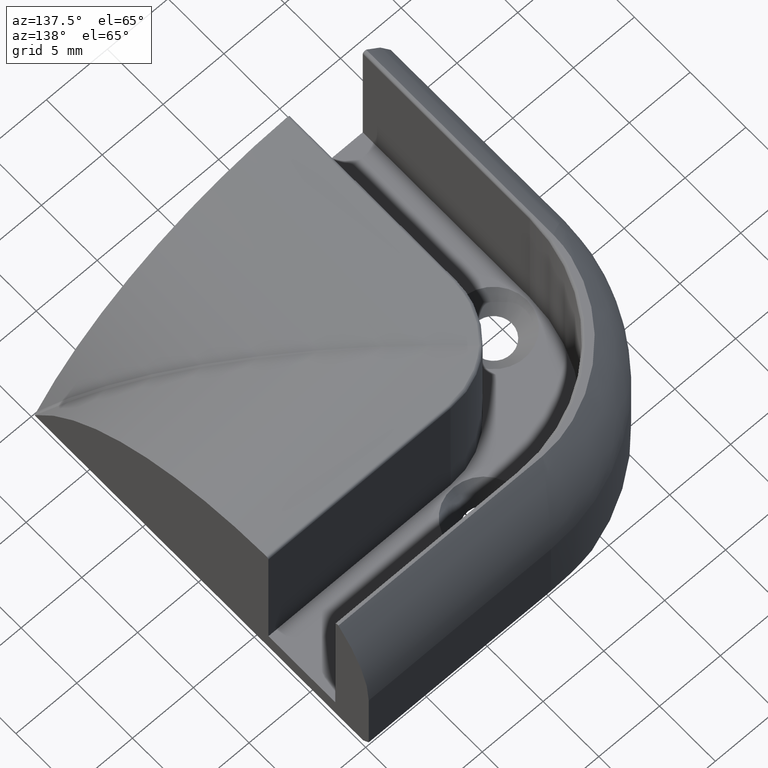
[diagram: clean part render]
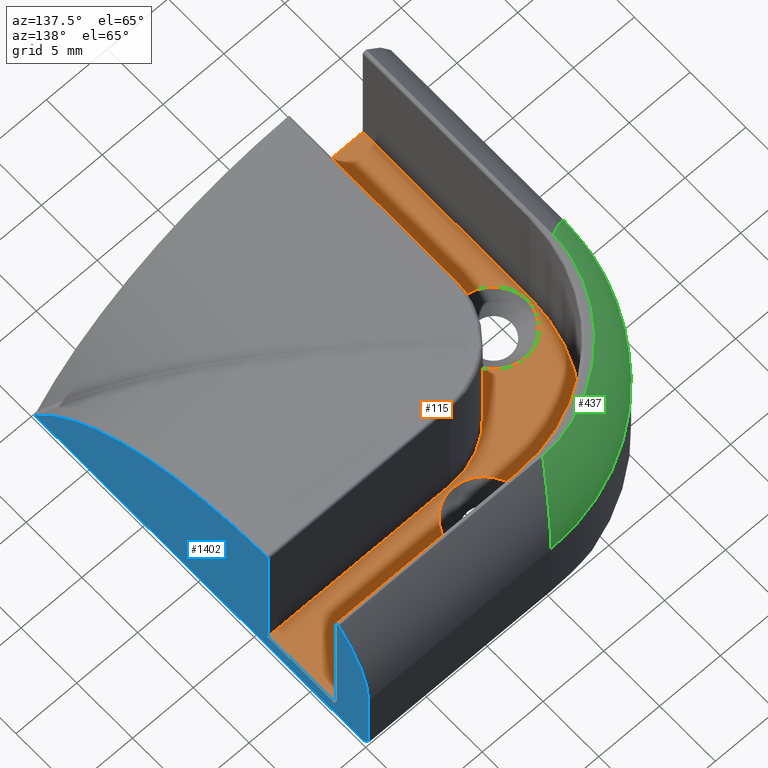
[diagram: same view with three faces highlighted in distinct colors, each labeled with its STEP entity id]
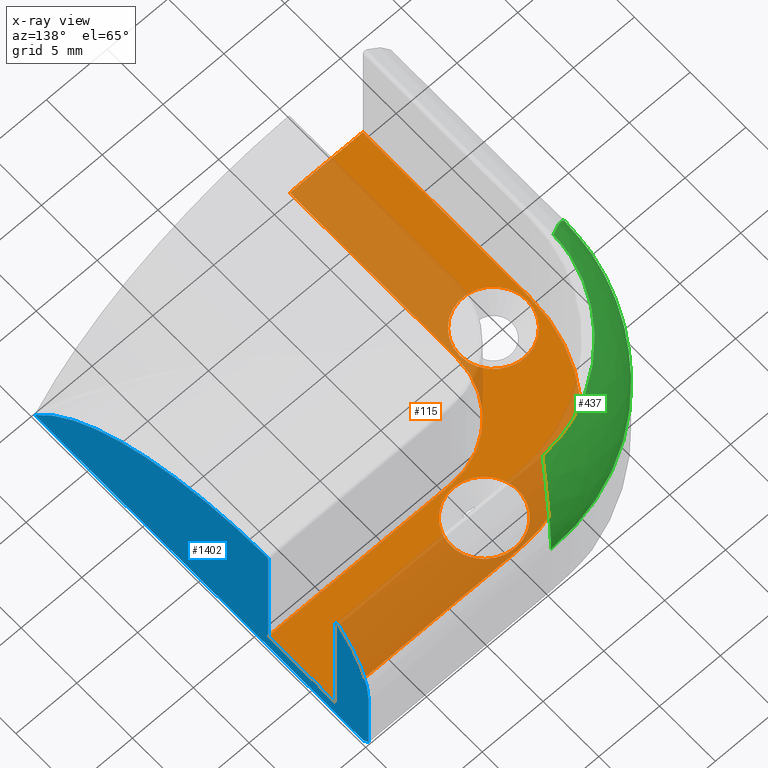
[diagram: x-ray of the same camera — body ghosted, the three highlighted faces saturated]
A machine part, auxiliary view with three faces highlighted in distinct colors.
The next image is the same camera in x-ray (body ghosted, the three faces saturated) — at least one of them is partly hidden behind the body in this view.
Their STEP definitions:

[orange] entity #115 — the highlighted planar face has unit normal (0, 0, 1).
#2=CARTESIAN_POINT('',(-26.980088826545170,0.302077244002991,1.196921255967027));
#3=DIRECTION('',(0.0,0.0,1.0));
#4=DIRECTION('',(1.0,0.0,0.0));
#5=AXIS2_PLACEMENT_3D('',#2,#3,#4);
#6=PLANE('',#5);
#7=CARTESIAN_POINT('',(-26.979088826508359,0.303077244039855,1.196921255967027));
#8=VERTEX_POINT('',#7);
#9=CARTESIAN_POINT('',(-20.979088826508359,0.303077244039855,1.196921255967027));
#10=VERTEX_POINT('',#9);
#11=CARTESIAN_POINT('',(-26.979088826508359,0.303077244039855,1.196921255967027));
#12=DIRECTION('',(1.0,0.0,0.0));
#13=VECTOR('',#12,6.0);
#14=LINE('',#11,#13);
#15=EDGE_CURVE('',#8,#10,#14,.T.);
#16=ORIENTED_EDGE('',*,*,#15,.T.);
#17=CARTESIAN_POINT('',(-20.979088826508359,15.282166070544577,1.196921255959977));
#18=VERTEX_POINT('',#17);
#19=CARTESIAN_POINT('',(-20.979088826508359,0.303077244039855,1.196921255967027));
#20=DIRECTION('',(0.0,1.0,0.0));
#21=VECTOR('',#20,14.979088826504722);
#22=LINE('',#19,#21);
#23=EDGE_CURVE('',#10,#18,#22,.T.);
#24=ORIENTED_EDGE('',*,*,#23,.T.);
#25=CARTESIAN_POINT('',(-14.979088826508359,21.282166070544577,1.196921255959977));
#26=VERTEX_POINT('',#25);
#27=CARTESIAN_POINT('',(-14.979088826508359,15.282166070544577,1.196921255967026));
#28=DIRECTION('',(0.0,6.123234E-017,1.0));
#29=DIRECTION('',(0.0,1.0,-6.123234E-017));
#30=AXIS2_PLACEMENT_3D('',#27,#28,#29);
#31=CIRCLE('',#30,6.0);
#32=EDGE_CURVE('',#26,#18,#31,.T.);
#33=ORIENTED_EDGE('',*,*,#32,.F.);
#34=CARTESIAN_POINT('',(0.0,21.282166070544577,1.196921255959977));
#35=VERTEX_POINT('',#34);
#36=CARTESIAN_POINT('',(0.0,21.282166070544577,1.196921255959977));
#37=DIRECTION('',(-1.0,0.0,0.0));
#38=VECTOR('',#37,14.979088826508359);
#39=LINE('',#36,#38);
#40=EDGE_CURVE('',#35,#26,#39,.T.);
#41=ORIENTED_EDGE('',*,*,#40,.F.);
#42=CARTESIAN_POINT('',(0.0,27.282166070544577,1.196921255959977));
#43=VERTEX_POINT('',#42);
#44=CARTESIAN_POINT('',(0.0,21.282166070544577,1.196921255959977));
#45=DIRECTION('',(0.0,1.0,0.0));
#46=VECTOR('',#45,6.0);
#47=LINE('',#44,#46);
#48=EDGE_CURVE('',#35,#43,#47,.T.);
#49=ORIENTED_EDGE('',*,*,#48,.T.);
#50=CARTESIAN_POINT('',(-14.979082826508261,27.282160070544137,1.196921255963842));
#51=VERTEX_POINT('',#50);
#52=CARTESIAN_POINT('',(0.0,27.282166070544577,1.196921255959977));
#53=DIRECTION('',(-0.999999999999975,-0.000000222394480,2.612667E-013));
#54=VECTOR('',#53,14.979082826509224);
#55=LINE('',#52,#54);
#56=EDGE_CURVE('',#43,#51,#55,.T.);
#57=ORIENTED_EDGE('',*,*,#56,.T.);
#58=CARTESIAN_POINT('',(-26.979082826508261,15.282160070544137,1.196921255963843));
#59=VERTEX_POINT('',#58);
#60=CARTESIAN_POINT('',(-14.979082826508261,15.282160070544137,1.196921255967026));
#61=DIRECTION('',(0.0,6.123234E-017,1.0));
#62=DIRECTION('',(0.0,1.0,-6.123234E-017));
#63=AXIS2_PLACEMENT_3D('',#60,#61,#62);
#64=CIRCLE('',#63,12.0);
#65=EDGE_CURVE('',#51,#59,#64,.T.);
#66=ORIENTED_EDGE('',*,*,#65,.T.);
#67=CARTESIAN_POINT('',(-26.979088826508359,0.303077244039855,1.196921255967027));
#68=DIRECTION('',(0.0,1.0,0.0));
#69=VECTOR('',#68,14.979082826504282);
#70=LINE('',#67,#69);
#71=EDGE_CURVE('',#8,#59,#70,.T.);
#72=ORIENTED_EDGE('',*,*,#71,.F.);
#73=EDGE_LOOP('',(#16,#24,#33,#41,#49,#57,#66,#72));
#74=FACE_OUTER_BOUND('',#73,.T.);
#75=CARTESIAN_POINT('',(-26.737731014624956,15.303077244039741,1.196921255973051));
#76=VERTEX_POINT('',#75);
#77=CARTESIAN_POINT('',(-21.220434638392021,15.303077244039741,1.196921255973051));
#78=VERTEX_POINT('',#77);
#79=CARTESIAN_POINT('',(-23.979082826508488,15.303077244039741,1.196921255973051));
#80=DIRECTION('',(0.0,6.123234E-017,1.0));
#81=DIRECTION('',(1.0,0.0,0.0));
#82=AXIS2_PLACEMENT_3D('',#79,#80,#81);
#83=CIRCLE('',#82,2.758648188116467);
#84=EDGE_CURVE('',#76,#78,#83,.T.);
#85=ORIENTED_EDGE('',*,*,#84,.F.);
#86=CARTESIAN_POINT('',(-23.979082826508488,15.303077244039741,1.196921255973051));
#87=DIRECTION('',(0.0,6.123234E-017,1.0));
#88=DIRECTION('',(1.0,0.0,0.0));
#89=AXIS2_PLACEMENT_3D('',#86,#87,#88);
#90=CIRCLE('',#89,2.758648188116467);
#91=EDGE_CURVE('',#78,#76,#90,.T.);
#92=ORIENTED_EDGE('',*,*,#91,.F.);
#93=EDGE_LOOP('',(#85,#92));
#94=FACE_BOUND('',#93,.T.);
#95=CARTESIAN_POINT('',(-14.989539913220938,27.040811258661051,1.196921255959977));
#96=VERTEX_POINT('',#95);
#97=CARTESIAN_POINT('',(-14.989539913220938,21.523520882428102,1.196921255959977));
#98=VERTEX_POINT('',#97);
#99=CARTESIAN_POINT('',(-14.989539913220938,24.282166070544577,1.196921255959977));
#100=DIRECTION('',(0.0,-6.123234E-017,-1.0));
#101=DIRECTION('',(0.0,1.0,-6.123234E-017));
#102=AXIS2_PLACEMENT_3D('',#99,#100,#101);
#103=CIRCLE('',#102,2.758645188116475);
#104=EDGE_CURVE('',#96,#98,#103,.T.);
#105=ORIENTED_EDGE('',*,*,#104,.T.);
#106=CARTESIAN_POINT('',(-14.989539913220938,24.282166070544577,1.196921255959977));
#107=DIRECTION('',(0.0,-6.123234E-017,-1.0));
#108=DIRECTION('',(0.0,1.0,-6.123234E-017));
#109=AXIS2_PLACEMENT_3D('',#106,#107,#108);
#110=CIRCLE('',#109,2.758645188116475);
#111=EDGE_CURVE('',#98,#96,#110,.T.);
#112=ORIENTED_EDGE('',*,*,#111,.T.);
#113=EDGE_LOOP('',(#105,#112));
#114=FACE_BOUND('',#113,.T.);
#115=ADVANCED_FACE('',(#74,#94,#114),#6,.T.);

[blue] entity #1402 — the highlighted planar face has unit normal (-1, 0, 0).
#34=CARTESIAN_POINT('',(0.0,21.282166070544577,1.196921255959977));
#35=VERTEX_POINT('',#34);
#42=CARTESIAN_POINT('',(0.0,27.282166070544577,1.196921255959977));
#43=VERTEX_POINT('',#42);
#44=CARTESIAN_POINT('',(0.0,21.282166070544577,1.196921255959977));
#45=DIRECTION('',(0.0,1.0,0.0));
#46=VECTOR('',#45,6.0);
#47=LINE('',#44,#46);
#48=EDGE_CURVE('',#35,#43,#47,.T.);
#212=CARTESIAN_POINT('',(0.0,30.282157070544258,0.196922255960088));
#213=VERTEX_POINT('',#212);
#220=CARTESIAN_POINT('',(0.0,29.782157570544314,-0.303077244039971));
#221=VERTEX_POINT('',#220);
#222=CARTESIAN_POINT('',(-3.061614E-017,30.282157070544258,0.196922255960088));
#223=DIRECTION('',(4.329780E-017,-0.707106781186467,-0.707106781186628));
#224=VECTOR('',#223,0.707106074079768);
#225=LINE('',#222,#224);
#226=EDGE_CURVE('',#213,#221,#225,.T.);
#467=CARTESIAN_POINT('',(0.0,30.282157070544372,6.196916255933045));
#468=VERTEX_POINT('',#467);
#469=CARTESIAN_POINT('',(-6.961311E-030,30.282157070544372,6.196916255933045));
#470=DIRECTION('',(0.0,0.0,-1.0));
#471=VECTOR('',#470,5.999993999972958);
#472=LINE('',#469,#471);
#473=EDGE_CURVE('',#468,#213,#472,.T.);
#516=CARTESIAN_POINT('',(0.0,27.564038552271995,12.641907809360530));
#517=VERTEX_POINT('',#516);
#518=CARTESIAN_POINT('',(0.0,21.282166070478524,6.196916255933046));
#519=DIRECTION('',(-1.0,-6.123234E-017,3.749399E-033));
#520=DIRECTION('',(-6.123234E-017,1.0,-6.123234E-017));
#521=AXIS2_PLACEMENT_3D('',#518,#519,#520);
#522=CIRCLE('',#521,8.999991000065847);
#523=EDGE_CURVE('',#517,#468,#522,.T.);
#541=CARTESIAN_POINT('',(0.0,0.303077244039741,-0.303077244039969));
#542=VERTEX_POINT('',#541);
#552=CARTESIAN_POINT('',(-1.805073E-015,29.782157570544314,-0.303077244039971));
#553=DIRECTION('',(0.0,-1.0,0.0));
#554=VECTOR('',#553,29.479080326508438);
#555=LINE('',#552,#554);
#556=EDGE_CURVE('',#221,#542,#555,.T.);
#907=CARTESIAN_POINT('',(0.0,27.282160070544137,12.441907806380298));
#908=VERTEX_POINT('',#907);
#915=CARTESIAN_POINT('',(0.0,27.482160073524369,12.641907809360530));
#916=VERTEX_POINT('',#915);
#917=CARTESIAN_POINT('',(0.0,27.482160073524369,12.441907806380298));
#918=DIRECTION('',(-1.0,0.0,0.0));
#919=DIRECTION('',(0.0,-1.0,6.123234E-017));
#920=AXIS2_PLACEMENT_3D('',#917,#918,#919);
#921=CIRCLE('',#920,0.200000002980232);
#922=EDGE_CURVE('',#908,#916,#921,.T.);
#962=CARTESIAN_POINT('',(-5.309519E-016,27.482160073524369,12.641907809360530));
#963=DIRECTION('',(0.0,1.0,0.0));
#964=VECTOR('',#963,0.081878478747672);
#965=LINE('',#962,#964);
#966=EDGE_CURVE('',#916,#517,#965,.T.);
#1024=CARTESIAN_POINT('',(0.0,27.282166070544577,1.196921255959977));
#1025=DIRECTION('',(0.0,-0.000000524247050,0.999999999999863));
#1026=VECTOR('',#1025,11.244986550421922);
#1027=LINE('',#1024,#1026);
#1028=EDGE_CURVE('',#43,#908,#1027,.T.);
#1128=CARTESIAN_POINT('',(0.0,21.074981943714146,12.362057179839779));
#1129=VERTEX_POINT('',#1128);
#1136=CARTESIAN_POINT('',(0.0,21.282166070544577,12.162186247594489));
#1137=VERTEX_POINT('',#1136);
#1138=CARTESIAN_POINT('',(0.0,21.082166067564348,12.162186247594489));
#1139=DIRECTION('',(-1.0,0.0,0.0));
#1140=DIRECTION('',(0.0,-0.035920618715748,0.999354646334862));
#1141=AXIS2_PLACEMENT_3D('',#1138,#1139,#1140);
#1142=CIRCLE('',#1141,0.200000002980240);
#1143=EDGE_CURVE('',#1129,#1137,#1142,.T.);
#1218=CARTESIAN_POINT('',(0.0,21.282166070544577,12.162186247594491));
#1219=DIRECTION('',(0.0,0.0,-1.0));
#1220=VECTOR('',#1219,10.965264991634513);
#1221=LINE('',#1218,#1220);
#1222=EDGE_CURVE('',#1137,#35,#1221,.T.);
#1369=CARTESIAN_POINT('',(0.0,33.280185055434799,-1.597695751686958));
#1370=DIRECTION('',(-1.0,0.0,0.0));
#1371=DIRECTION('',(0.0,-1.0,0.0));
#1372=AXIS2_PLACEMENT_3D('',#1369,#1370,#1371);
#1373=PLANE('',#1372);
#1374=ORIENTED_EDGE('',*,*,#966,.F.);
#1375=ORIENTED_EDGE('',*,*,#922,.F.);
#1376=ORIENTED_EDGE('',*,*,#1028,.F.);
#1377=ORIENTED_EDGE('',*,*,#48,.F.);
#1378=ORIENTED_EDGE('',*,*,#1222,.F.);
#1379=ORIENTED_EDGE('',*,*,#1143,.F.);
#1380=CARTESIAN_POINT('',(-1.136868E-013,0.476072615469362,-2.273737E-013));
#1381=VERTEX_POINT('',#1380);
#1382=CARTESIAN_POINT('',(1.972152E-031,21.967473363648431,-12.468123346382077));
#1383=DIRECTION('',(-1.000000000000000,-6.123234E-017,6.162976E-033));
#1384=DIRECTION('',(5.339090E-017,-0.871939489094975,0.489613651113604));
#1385=AXIS2_PLACEMENT_3D('',#1382,#1383,#1384);
#1386=CIRCLE('',#1385,24.846215122215764);
#1387=EDGE_CURVE('',#1381,#1129,#1386,.T.);
#1388=ORIENTED_EDGE('',*,*,#1387,.F.);
#1389=CARTESIAN_POINT('',(1.972152E-031,21.967473363648431,-12.468123346382077));
#1390=DIRECTION('',(-1.000000000000000,-6.123234E-017,6.162976E-033));
#1391=DIRECTION('',(5.339090E-017,-0.871939489094975,0.489613651113604));
#1392=AXIS2_PLACEMENT_3D('',#1389,#1390,#1391);
#1393=CIRCLE('',#1392,24.846215122215764);
#1394=EDGE_CURVE('',#542,#1381,#1393,.T.);
#1395=ORIENTED_EDGE('',*,*,#1394,.F.);
#1396=ORIENTED_EDGE('',*,*,#556,.F.);
#1397=ORIENTED_EDGE('',*,*,#226,.F.);
#1398=ORIENTED_EDGE('',*,*,#473,.F.);
#1399=ORIENTED_EDGE('',*,*,#523,.F.);
#1400=EDGE_LOOP('',(#1374,#1375,#1376,#1377,#1378,#1379,#1388,#1395,#1396,#1397,#1398,#1399));
#1401=FACE_OUTER_BOUND('',#1400,.T.);
#1402=ADVANCED_FACE('',(#1401),#1373,.F.);

[green] entity #437 — the highlighted face is a freeform B-spline surface patch.
#162=CARTESIAN_POINT('',(-14.979079826508610,30.282157070544372,6.196916255933045));
#163=VERTEX_POINT('',#162);
#189=CARTESIAN_POINT('',(-29.979079826508496,15.282157070544372,6.196916255939981));
#190=VERTEX_POINT('',#189);
#197=CARTESIAN_POINT('',(-14.979079826508496,15.282157070544374,6.196916255936571));
#198=DIRECTION('',(-2.273737E-013,-2.350140E-013,-1.0));
#199=DIRECTION('',(-7.579123E-015,1.0,-2.350140E-013));
#200=AXIS2_PLACEMENT_3D('',#197,#198,#199);
#201=CIRCLE('',#200,14.999999999999998);
#202=EDGE_CURVE('',#190,#163,#201,.T.);
#238=CARTESIAN_POINT('',(-16.899792408590997,27.401095400040376,12.795801232497752));
#239=CARTESIAN_POINT('',(-17.418320290685152,27.131514681305454,13.045730059041025));
#240=CARTESIAN_POINT('',(-18.456003187765972,26.536040857796870,13.487311235159359));
#241=CARTESIAN_POINT('',(-19.984690186315561,25.490697513403731,13.961945799625202));
#242=CARTESIAN_POINT('',(-21.462053115873285,24.309479610339068,14.241757440285845));
#243=CARTESIAN_POINT('',(-22.863887425116008,23.011640282134142,14.322057732475859));
#244=CARTESIAN_POINT('',(-24.167608053299812,21.618132325624885,14.201598159931825));
#245=CARTESIAN_POINT('',(-25.352162404367977,20.151401676130803,13.882264741312662));
#246=CARTESIAN_POINT('',(-26.398235635810671,18.635479024648163,13.369384509187196));
#247=CARTESIAN_POINT('',(-26.992447652303589,17.607589246992287,12.903540666305616));
#248=CARTESIAN_POINT('',(-27.260961308236119,17.094240612887788,12.641907809367467));
#249=CARTESIAN_POINT('',(-16.883064124529305,27.426187763402361,12.772573912291847));
#250=CARTESIAN_POINT('',(-17.404445508308822,27.157037279006289,13.024010358938003));
#251=CARTESIAN_POINT('',(-18.447852544244029,26.561712835372404,13.468317459396282));
#252=CARTESIAN_POINT('',(-19.984749686780077,25.514600626514238,13.945979229428536));
#253=CARTESIAN_POINT('',(-21.469617061961483,24.329791274060440,14.227650127746251));
#254=CARTESIAN_POINT('',(-22.877915793980627,23.026763403775185,14.308570065768489));
#255=CARTESIAN_POINT('',(-24.186760365067805,21.626736434336468,14.187470429417456));
#256=CARTESIAN_POINT('',(-25.374832125349990,20.152457042811395,13.866264247681347));
#257=CARTESIAN_POINT('',(-26.422592387233053,18.628289150798103,13.350356646466727));
#258=CARTESIAN_POINT('',(-27.016595680718634,17.594658779647361,12.881800388775698));
#259=CARTESIAN_POINT('',(-27.284649422604431,17.078448497162356,12.618670476367349));
#260=CARTESIAN_POINT('',(-16.849424389092430,27.476647240409694,12.725864942994537));
#261=CARTESIAN_POINT('',(-17.376544020824348,27.208361935567087,12.980333137619938));
#262=CARTESIAN_POINT('',(-18.431462011257665,26.613337887326178,13.430121934424267));
#263=CARTESIAN_POINT('',(-19.984869339212878,25.562668581254215,13.913871262151712));
#264=CARTESIAN_POINT('',(-21.484827776002881,24.370637005239423,14.199281033832783));
#265=CARTESIAN_POINT('',(-22.906126136145801,23.057175238552034,14.281447048367333));
#266=CARTESIAN_POINT('',(-24.225274697948791,21.644038862945425,14.159060275986649));
#267=CARTESIAN_POINT('',(-25.420419790734574,20.154579331971064,13.834088062088624));
#268=CARTESIAN_POINT('',(-26.471572585735721,18.613830677158575,13.312092574342820));
#269=CARTESIAN_POINT('',(-27.065156147781988,17.568656262057722,12.838081787290115));
#270=CARTESIAN_POINT('',(-27.332285025718864,17.046691349027327,12.571941371845945));
#271=CARTESIAN_POINT('',(-16.783019361791727,27.576254532343967,12.630750261000417));
#272=CARTESIAN_POINT('',(-17.321661843366559,27.310021490622663,12.891104969135810));
#273=CARTESIAN_POINT('',(-18.399697547026456,26.716179644599674,13.351557493079010));
#274=CARTESIAN_POINT('',(-19.986227142279482,25.659063436869165,13.847181212296483));
#275=CARTESIAN_POINT('',(-21.516384942015225,24.453052262751847,14.139906455929236));
#276=CARTESIAN_POINT('',(-22.963575389914713,23.118997443106348,14.224533783082968));
#277=CARTESIAN_POINT('',(-24.303067914567151,21.679750474222434,14.099670424698811));
#278=CARTESIAN_POINT('',(-25.511915057571592,20.159904527572142,13.767393491016414));
#279=CARTESIAN_POINT('',(-26.569214549157849,18.585874244108094,13.233584776823649));
#280=CARTESIAN_POINT('',(-27.161402749136958,17.517496413812353,12.749001880253370));
#281=CARTESIAN_POINT('',(-27.426373372491042,16.983965627699831,12.477035407454398));
#282=CARTESIAN_POINT('',(-16.522813557369332,27.966562263212719,12.242653717830915));
#283=CARTESIAN_POINT('',(-17.107697349080876,27.710055761384162,12.525582728066556));
#284=CARTESIAN_POINT('',(-18.278508566201015,27.123717543463211,13.027018385167493));
#285=CARTESIAN_POINT('',(-19.997816494920283,26.044077057254206,13.568415013971251));
#286=CARTESIAN_POINT('',(-21.648691408737800,24.784513086853423,13.889411928312443));
#287=CARTESIAN_POINT('',(-23.198827065857451,23.369594114003625,13.983599728636678));
#288=CARTESIAN_POINT('',(-24.618384999120117,21.826650456612189,13.849234913473724));
#289=CARTESIAN_POINT('',(-25.879938959647617,20.185376460505310,13.488833069406954));
#290=CARTESIAN_POINT('',(-26.958875387993096,18.477886636680424,12.909572569173408));
#291=CARTESIAN_POINT('',(-27.542950352210557,17.316284687429327,12.384385528256335));
#292=CARTESIAN_POINT('',(-27.797887453620035,16.736288954428378,12.090090971007092));
#293=CARTESIAN_POINT('',(-16.174061876836664,28.489688476203298,11.621935985065800));
#294=CARTESIAN_POINT('',(-16.828020827605524,28.258639071474295,11.929546509978287));
#295=CARTESIAN_POINT('',(-18.137528279799408,27.703724062679033,12.476556137588604));
#296=CARTESIAN_POINT('',(-20.053889101759200,26.615021180942357,13.069895591605501));
#297=CARTESIAN_POINT('',(-21.881039103339525,25.294144833991830,13.423568016997224));
#298=CARTESIAN_POINT('',(-23.576911634299222,23.771437950407762,13.529235063877596));
#299=CARTESIAN_POINT('',(-25.103098062555127,22.081550676054189,13.384585342145183));
#300=CARTESIAN_POINT('',(-26.424862824699872,20.262750928598138,12.992820965214488));
#301=CARTESIAN_POINT('',(-27.511839150450633,18.356905976685610,12.363162403871369));
#302=CARTESIAN_POINT('',(-28.063876748963494,17.055703206213703,11.793654447754962));
#303=CARTESIAN_POINT('',(-28.293076168228612,16.406162319380883,11.475375035447733));
#304=CARTESIAN_POINT('',(-15.803239566240066,29.045920551525374,10.778659153178028));
#305=CARTESIAN_POINT('',(-16.541916624063177,28.860540124184574,11.094346480284525));
#306=CARTESIAN_POINT('',(-18.021682358822574,28.371522345151192,11.657971811610192));
#307=CARTESIAN_POINT('',(-20.177825266654221,27.305988561327087,12.272578622072864));
#308=CARTESIAN_POINT('',(-22.215225681786571,25.936608580492340,12.640957687823338));
#309=CARTESIAN_POINT('',(-24.078134552392456,24.300619362401658,12.752787430266439));
#310=CARTESIAN_POINT('',(-25.716453428938358,22.442226800314870,12.605153406009412));
#311=CARTESIAN_POINT('',(-27.085907816415141,20.411403612296589,12.201938491587930));
#312=CARTESIAN_POINT('',(-28.149255824981616,18.263712852592892,11.554418571518809));
#313=CARTESIAN_POINT('',(-28.635339600281696,16.790690653067884,10.970704670149063));
#314=CARTESIAN_POINT('',(-28.818908223068163,16.055606739774415,10.645596182987374));
#315=CARTESIAN_POINT('',(-15.519149512100913,29.472054567403596,9.967167401396170));
#316=CARTESIAN_POINT('',(-16.330914686852864,29.334876600806552,10.268796022882764));
#317=CARTESIAN_POINT('',(-17.957669281041113,28.919666336003619,10.809136496730533));
#318=CARTESIAN_POINT('',(-20.319406932262119,27.895833502287260,11.400917162785666));
#319=CARTESIAN_POINT('',(-22.534239936024150,26.501791068169108,11.757138532888092));
#320=CARTESIAN_POINT('',(-24.533526812261321,24.780382946891116,11.866481940034157));
#321=CARTESIAN_POINT('',(-26.256400328443952,22.784290899771882,11.725711331813145));
#322=CARTESIAN_POINT('',(-27.650128822795462,20.574281246712893,11.339027165588472));
#323=CARTESIAN_POINT('',(-28.671875954944497,18.218839797400122,10.718694110872351));
#324=CARTESIAN_POINT('',(-29.084548319591210,16.597148281664420,10.161156162322294));
#325=CARTESIAN_POINT('',(-29.220194947322362,15.788081588132231,9.851542294423785));
#326=CARTESIAN_POINT('',(-15.285818711122484,29.822049893888384,9.090951428559629));
#327=CARTESIAN_POINT('',(-16.164860267484471,29.735804160879713,9.352763196202631));
#328=CARTESIAN_POINT('',(-17.927000311628337,29.401421373975889,9.823190966981152));
#329=CARTESIAN_POINT('',(-20.476947111609629,28.432877380365756,10.340368987369285));
#330=CARTESIAN_POINT('',(-22.851884477226182,27.029754847082167,10.652792273281603));
#331=CARTESIAN_POINT('',(-24.970454662647676,25.239609044305666,10.749475034102504));
#332=CARTESIAN_POINT('',(-26.761397985886354,23.122990232189906,10.627247132352350));
#333=CARTESIAN_POINT('',(-28.164133417587841,20.751089950616997,10.290146418341042));
#334=CARTESIAN_POINT('',(-29.131117562712650,18.205156266594777,9.750006317520668));
#335=CARTESIAN_POINT('',(-29.463707048591754,16.446264692724935,9.265916924393547));
#336=CARTESIAN_POINT('',(-29.548887341785907,15.568952777340106,8.997820630992612));
#337=CARTESIAN_POINT('',(-15.079189726430389,30.131992596072084,7.988419171478431));
#338=CARTESIAN_POINT('',(-16.023979023783522,30.100282818654517,8.170946026847981));
#339=CARTESIAN_POINT('',(-17.918490032830345,29.854434911193067,8.499925234979459));
#340=CARTESIAN_POINT('',(-20.651520661641150,28.952754335349184,8.862993117619066));
#341=CARTESIAN_POINT('',(-23.180340809759841,27.551286118119975,9.083085875629960));
#342=CARTESIAN_POINT('',(-25.410525987448764,25.701705847811901,9.151702546892423));
#343=CARTESIAN_POINT('',(-27.260342666761755,23.472212791925287,9.066369578474973));
#344=CARTESIAN_POINT('',(-28.661581524113494,20.944514591639383,8.830185631477017));
#345=CARTESIAN_POINT('',(-29.562576021579645,18.212988610721542,8.452259586190701));
#346=CARTESIAN_POINT('',(-29.807676439553923,16.319712944440955,8.114556158187618));
#347=CARTESIAN_POINT('',(-29.838949895840951,15.375577257869793,7.928056332847451));
#348=CARTESIAN_POINT('',(-14.999385517196686,30.251698610658714,7.106062436994177));
#349=CARTESIAN_POINT('',(-15.972470830703138,30.245405587925021,7.201185459306519));
#350=CARTESIAN_POINT('',(-17.923977118243158,30.041624929639980,7.372771118420717));
#351=CARTESIAN_POINT('',(-20.735431054881367,29.174152985589835,7.562326399358296));
#352=CARTESIAN_POINT('',(-23.329350654761519,27.777915290790652,7.677335370246466));
#353=CARTESIAN_POINT('',(-25.605418657988331,25.906109797087588,7.713249671436127));
#354=CARTESIAN_POINT('',(-27.477273691725131,23.630179922998828,7.668743042526362));
#355=CARTESIAN_POINT('',(-28.873469686787693,21.036482171660772,7.545469956847249));
#356=CARTESIAN_POINT('',(-29.740809916232735,18.225321992554008,7.348297676529787));
#357=CARTESIAN_POINT('',(-29.944444651152168,16.274065911201447,7.172253517530644));
#358=CARTESIAN_POINT('',(-29.950652933080853,15.301108380207015,7.075105137842476));
#359=CARTESIAN_POINT('',(-14.980676817932942,30.279761589396365,6.449258634335996));
#360=CARTESIAN_POINT('',(-15.960288548488954,30.279261449469942,6.475805455610943));
#361=CARTESIAN_POINT('',(-17.924940510734842,30.085047907138517,6.523696736455525));
#362=CARTESIAN_POINT('',(-20.754496749800730,29.225287774512417,6.576611524127809));
#363=CARTESIAN_POINT('',(-23.363469750817146,27.830111200763515,6.608720983440254));
#364=CARTESIAN_POINT('',(-25.650189942955819,25.953071669668876,6.618750971384902));
#365=CARTESIAN_POINT('',(-27.527232084639245,23.666361206137601,6.606329823794660));
#366=CARTESIAN_POINT('',(-28.922403769370348,21.057405467769136,6.571920956314931));
#367=CARTESIAN_POINT('',(-29.782151711372617,18.227870233494418,6.516887622857177));
#368=CARTESIAN_POINT('',(-29.976351840835754,16.263248445640667,6.467757080674481));
#369=CARTESIAN_POINT('',(-29.976845219171324,15.283646812493453,6.440647544512499));
#370=CARTESIAN_POINT('',(-14.979086590826206,30.282146924093148,6.281121030268095));
#371=CARTESIAN_POINT('',(-15.959254962768817,30.282147158709744,6.289966357441580));
#372=CARTESIAN_POINT('',(-17.925031970780459,30.088761529986495,6.305925829917650));
#373=CARTESIAN_POINT('',(-20.756140837822244,29.229672198069032,6.323561167108523));
#374=CARTESIAN_POINT('',(-23.366405462793043,27.834593162684019,6.334263207928724));
#375=CARTESIAN_POINT('',(-25.654038300948926,25.957108246117318,6.337606050997907));
#376=CARTESIAN_POINT('',(-27.531521880552411,23.669474090096045,6.333465502534470));
#377=CARTESIAN_POINT('',(-28.926599364255807,21.059209029740803,6.321996334661439));
#378=CARTESIAN_POINT('',(-29.785687021491288,18.228097505185506,6.303654174556390));
#379=CARTESIAN_POINT('',(-29.979070824298315,16.262331606104176,6.287281264079422));
#380=CARTESIAN_POINT('',(-29.979070642013980,15.282163193556022,6.278248266910667));
#381=CARTESIAN_POINT('',(-14.979079826508496,30.282157070544375,6.196916255933045));
#382=CARTESIAN_POINT('',(-15.959251229804101,30.282157070544375,6.196916255933268));
#383=CARTESIAN_POINT('',(-17.925031926232066,30.088770576792943,6.196916255933760));
#384=CARTESIAN_POINT('',(-20.756143457045393,29.229679746560361,6.196916255934606));
#385=CARTESIAN_POINT('',(-23.366409458855255,27.834599459692040,6.196916255935525));
#386=CARTESIAN_POINT('',(-25.654043248807930,25.957113501522976,6.196916255936489));
#387=CARTESIAN_POINT('',(-27.531527740139307,23.669478335880481,6.196916255937452));
#388=CARTESIAN_POINT('',(-28.926606300443297,21.059211939689586,6.196916255938385));
#389=CARTESIAN_POINT('',(-29.785695269552210,18.228097900482400,6.196916255939243));
#390=CARTESIAN_POINT('',(-29.979079826508496,16.262328473839979,6.196916255939749));
#391=CARTESIAN_POINT('',(-29.979079826508496,15.282157070544372,6.196916255939979));
#392=B_SPLINE_SURFACE_WITH_KNOTS('',3,3,((#238,#249,#260,#271,#282,#293,#304,#315,#326,#337,#348,#359,#370,#381),(#239,#250,#261,#272,#283,#294,#305,#316,#327,#338,#349,#360,#371,#382),(#240,#251,#262,#273,#284,#295,#306,#317,#328,#339,#350,#361,#372,#383),(#241,#252,#263,#274,#285,#296,#307,#318,#329,#340,#351,#362,#373,#384),(#242,#253,#264,#275,#286,#297,#308,#319,#330,#341,#352,#363,#374,#385),(#243,#254,#265,#276,#287,#298,#309,#320,#331,#342,#353,#364,#375,#386),(#244,#255,#266,#277,#288,#299,#310,#321,#332,#343,#354,#365,#376,#387),(#245,#256,#267,#278,#289,#300,#311,#322,#333,#344,#355,#366,#377,#388),(#246,#257,#268,#279,#290,#301,#312,#323,#334,#345,#356,#367,#378,#389),(#247,#258,#269,#280,#291,#302,#313,#324,#335,#346,#357,#368,#379,#390),(#248,#259,#270,#281,#292,#303,#314,#325,#336,#347,#358,#369,#380,#391)),.UNSPECIFIED.,.F.,.F.,.U.,(4,1,1,1,1,1,1,1,4),(4,1,1,1,1,1,1,1,1,1,1,4),(0.0,2.520175425507451,5.040359293161854,7.560551602963211,10.080752354911521,12.600961549006783,15.121179185249000,17.641405263638163,20.161639784174284),(0.0,0.090279102920766,0.181546722098515,0.366950015033110,1.576100391457885,2.492781257981137,3.512987305158326,4.644343550424859,5.883130865288035,7.893013899248282,8.238662171570599,8.585164982643555),.UNSPECIFIED.);
#393=CARTESIAN_POINT('',(-16.791163368858975,27.564038552282636,12.641907809350185));
#394=VERTEX_POINT('',#393);
#395=CARTESIAN_POINT('',(-16.791163368858975,27.564038552282636,12.641907809350185));
#396=CARTESIAN_POINT('',(-16.483832136155911,28.025034248853729,12.192579651738468));
#397=CARTESIAN_POINT('',(-15.976129365098018,28.786586501569936,11.280133640239795));
#398=CARTESIAN_POINT('',(-15.423146221483080,29.616059143320985,9.720843181197777));
#399=CARTESIAN_POINT('',(-15.069393113425463,30.146687478843418,8.059624857744096));
#400=CARTESIAN_POINT('',(-14.979079826508496,30.282157070544375,6.860112821689198));
#401=CARTESIAN_POINT('',(-14.979079826508496,30.282157070544375,6.196916255933045));
#402=B_SPLINE_CURVE_WITH_KNOTS('',3,(#395,#396,#397,#398,#399,#400,#401),.UNSPECIFIED.,.F.,.U.,(4,1,1,1,4),(0.0,2.272665204260283,4.025470756334207,5.568264665453262,7.471832047471911),.UNSPECIFIED.);
#403=EDGE_CURVE('',#394,#163,#402,.T.);
#404=ORIENTED_EDGE('',*,*,#403,.T.);
#405=ORIENTED_EDGE('',*,*,#202,.F.);
#406=CARTESIAN_POINT('',(-27.260961308236119,17.094240612887788,12.641907809367465));
#407=VERTEX_POINT('',#406);
#408=CARTESIAN_POINT('',(-27.260961308236119,17.094240612887788,12.641907809367465));
#409=CARTESIAN_POINT('',(-27.721957004808701,16.786909380185751,12.192579651755748));
#410=CARTESIAN_POINT('',(-28.483509257526862,16.279206609129211,11.280133640257985));
#411=CARTESIAN_POINT('',(-29.312981899280885,15.726223465516163,9.720843181213807));
#412=CARTESIAN_POINT('',(-29.843610234805169,15.372470357459571,8.059624857765696));
#413=CARTESIAN_POINT('',(-29.979079826508496,15.282157070544374,6.860112821696133));
#414=CARTESIAN_POINT('',(-29.979079826508496,15.282157070544374,6.196916255939981));
#415=B_SPLINE_CURVE_WITH_KNOTS('',3,(#408,#409,#410,#411,#412,#413,#414),.UNSPECIFIED.,.F.,.U.,(4,1,1,1,4),(0.0,2.272665204264138,4.025470756341036,5.568264665462708,7.471832047484587),.UNSPECIFIED.);
#416=EDGE_CURVE('',#407,#190,#415,.T.);
#417=ORIENTED_EDGE('',*,*,#416,.F.);
#418=CARTESIAN_POINT('',(-16.791163368858975,27.564038552271995,12.641907809360530));
#419=CARTESIAN_POINT('',(-16.938567784073712,27.564341246985279,12.641907809360530));
#420=CARTESIAN_POINT('',(-17.302150154285187,27.552164552804438,12.641907809360530));
#421=CARTESIAN_POINT('',(-18.093302045134692,27.471964687538009,12.641907809360530));
#422=CARTESIAN_POINT('',(-19.052318389846505,27.266735408054945,12.641907809360530));
#423=CARTESIAN_POINT('',(-20.432188606153090,26.805199162900244,12.641907809360530));
#424=CARTESIAN_POINT('',(-21.799539574240612,26.119234771902526,12.641907809360530));
#425=CARTESIAN_POINT('',(-23.470961067923668,24.923757502281337,12.641907809360530));
#426=CARTESIAN_POINT('',(-24.881553734958857,23.483411746027674,12.641907809360530));
#427=CARTESIAN_POINT('',(-26.188328005437825,21.493969000752411,12.641907809360530));
#428=CARTESIAN_POINT('',(-26.908599016671019,19.697358633927269,12.641907809360530));
#429=CARTESIAN_POINT('',(-27.212436582547298,18.131342700357852,12.641907809360530));
#430=CARTESIAN_POINT('',(-27.260879418441050,17.408725354799152,12.641907809360530));
#431=CARTESIAN_POINT('',(-27.260961308236119,17.094240612883041,12.641907809360530));
#432=B_SPLINE_CURVE_WITH_KNOTS('',3,(#418,#419,#420,#421,#422,#423,#424,#425,#426,#427,#428,#429,#430,#431),.UNSPECIFIED.,.F.,.U.,(4,1,1,1,1,1,1,1,1,1,1,4),(0.0,0.442273260652632,1.090686310800550,2.383882775514035,3.377528490735313,5.450890961864220,6.953184520069272,9.529608423676153,11.461884789775455,14.069707021466726,15.293576749552262,16.237592246965193),.UNSPECIFIED.);
#433=EDGE_CURVE('',#394,#407,#432,.T.);
#434=ORIENTED_EDGE('',*,*,#433,.F.);
#435=EDGE_LOOP('',(#404,#405,#417,#434));
#436=FACE_OUTER_BOUND('',#435,.T.);
#437=ADVANCED_FACE('',(#436),#392,.F.);